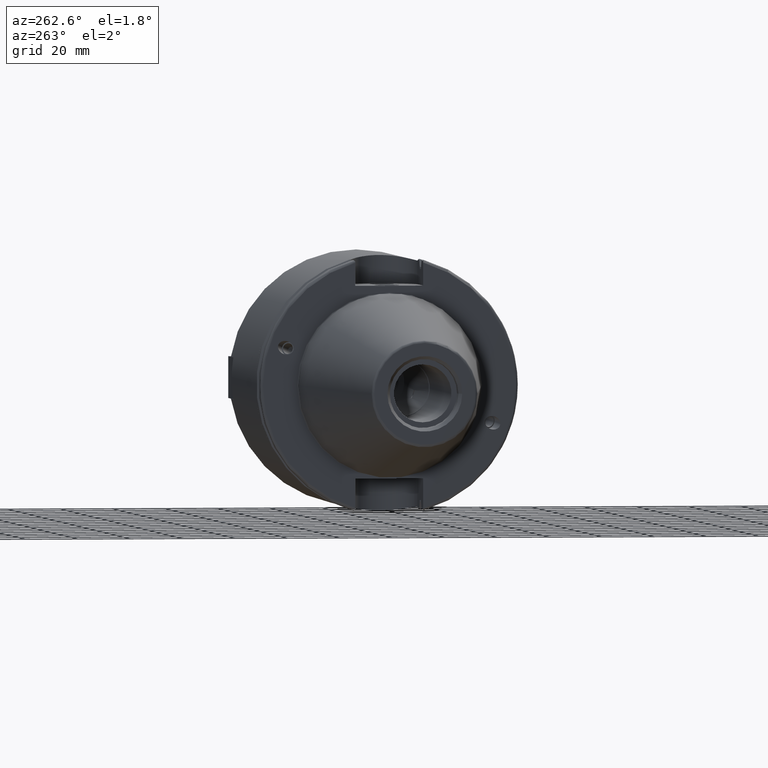
[diagram: clean part render]
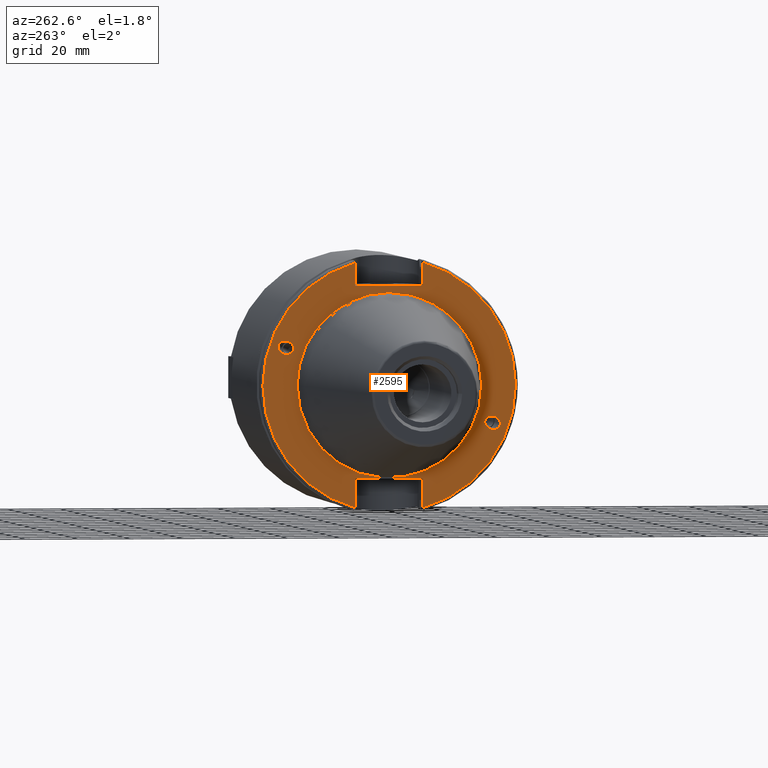
[diagram: same view with one face highlighted and labeled with its STEP entity id]
A machine part, auxiliary view. The second image highlights one B-rep face of the part: STEP entity #2595.
In plain terms, the highlighted planar face has unit normal (-1, 0, 0).
Its self-contained STEP definition (entity closure, byte-faithful):
#55=ELLIPSE('',#2867,3.05193647190364,2.5);
#56=ELLIPSE('',#2906,3.05193647190364,2.5);
#152=FACE_BOUND('',#564,.T.);
#153=FACE_BOUND('',#565,.T.);
#154=FACE_BOUND('',#566,.T.);
#262=CIRCLE('',#2915,35.125);
#263=CIRCLE('',#2916,35.125);
#266=CIRCLE('',#2920,48.2125);
#267=CIRCLE('',#2921,48.2125);
#409=FACE_OUTER_BOUND('',#563,.T.);
#563=EDGE_LOOP('',(#2048,#2049,#2050,#2051,#2052,#2053,#2054,#2055));
#564=EDGE_LOOP('',(#2056));
#565=EDGE_LOOP('',(#2057));
#566=EDGE_LOOP('',(#2058,#2059));
#720=LINE('',#4794,#870);
#721=LINE('',#4798,#871);
#722=LINE('',#4800,#872);
#723=LINE('',#4802,#873);
#724=LINE('',#4806,#874);
#725=LINE('',#4807,#875);
#870=VECTOR('',#3490,10.);
#871=VECTOR('',#3493,10.);
#872=VECTOR('',#3494,10.);
#873=VECTOR('',#3495,10.);
#874=VECTOR('',#3498,10.);
#875=VECTOR('',#3499,10.);
#1109=VERTEX_POINT('',#4497);
#1152=VERTEX_POINT('',#4766);
#1158=VERTEX_POINT('',#4783);
#1159=VERTEX_POINT('',#4785);
#1161=VERTEX_POINT('',#4792);
#1162=VERTEX_POINT('',#4793);
#1163=VERTEX_POINT('',#4795);
#1164=VERTEX_POINT('',#4797);
#1165=VERTEX_POINT('',#4799);
#1166=VERTEX_POINT('',#4801);
#1167=VERTEX_POINT('',#4803);
#1168=VERTEX_POINT('',#4805);
#1424=EDGE_CURVE('',#1109,#1109,#55,.T.);
#1480=EDGE_CURVE('',#1152,#1152,#56,.T.);
#1488=EDGE_CURVE('',#1158,#1159,#262,.T.);
#1489=EDGE_CURVE('',#1159,#1158,#263,.T.);
#1492=EDGE_CURVE('',#1161,#1162,#720,.T.);
#1493=EDGE_CURVE('',#1163,#1162,#266,.T.);
#1494=EDGE_CURVE('',#1163,#1164,#721,.T.);
#1495=EDGE_CURVE('',#1164,#1165,#722,.T.);
#1496=EDGE_CURVE('',#1165,#1166,#723,.T.);
#1497=EDGE_CURVE('',#1167,#1166,#267,.T.);
#1498=EDGE_CURVE('',#1167,#1168,#724,.T.);
#1499=EDGE_CURVE('',#1168,#1161,#725,.T.);
#2048=ORIENTED_EDGE('',*,*,#1492,.T.);
#2049=ORIENTED_EDGE('',*,*,#1493,.F.);
#2050=ORIENTED_EDGE('',*,*,#1494,.T.);
#2051=ORIENTED_EDGE('',*,*,#1495,.T.);
#2052=ORIENTED_EDGE('',*,*,#1496,.T.);
#2053=ORIENTED_EDGE('',*,*,#1497,.F.);
#2054=ORIENTED_EDGE('',*,*,#1498,.T.);
#2055=ORIENTED_EDGE('',*,*,#1499,.T.);
#2056=ORIENTED_EDGE('',*,*,#1424,.T.);
#2057=ORIENTED_EDGE('',*,*,#1480,.T.);
#2058=ORIENTED_EDGE('',*,*,#1489,.F.);
#2059=ORIENTED_EDGE('',*,*,#1488,.F.);
#2490=PLANE('',#2919);
#2595=ADVANCED_FACE('',(#409,#152,#153,#154),#2490,.T.);
#2867=AXIS2_PLACEMENT_3D('',#4499,#3366,#3367);
#2906=AXIS2_PLACEMENT_3D('',#4768,#3460,#3461);
#2915=AXIS2_PLACEMENT_3D('',#4786,#3480,#3481);
#2916=AXIS2_PLACEMENT_3D('',#4787,#3482,#3483);
#2919=AXIS2_PLACEMENT_3D('',#4791,#3488,#3489);
#2920=AXIS2_PLACEMENT_3D('',#4796,#3491,#3492);
#2921=AXIS2_PLACEMENT_3D('',#4804,#3496,#3497);
#3366=DIRECTION('center_axis',(1.,0.,0.));
#3367=DIRECTION('ref_axis',(0.,-0.939692620785908,-0.342020143325669));
#3460=DIRECTION('center_axis',(1.,0.,0.));
#3461=DIRECTION('ref_axis',(0.,0.939692620785908,0.342020143325669));
#3480=DIRECTION('center_axis',(-1.,0.,0.));
#3481=DIRECTION('ref_axis',(0.,-1.,1.83697019872103E-16));
#3482=DIRECTION('center_axis',(-1.,0.,0.));
#3483=DIRECTION('ref_axis',(0.,-1.,1.83697019872103E-16));
#3488=DIRECTION('center_axis',(-1.,0.,0.));
#3489=DIRECTION('ref_axis',(0.,0.,1.));
#3490=DIRECTION('',(0.,0.,-1.));
#3491=DIRECTION('center_axis',(1.,0.,0.));
#3492=DIRECTION('ref_axis',(0.,-1.,1.60812264967664E-16));
#3493=DIRECTION('',(0.,0.,-1.));
#3494=DIRECTION('',(0.,1.,0.));
#3495=DIRECTION('',(0.,0.,1.));
#3496=DIRECTION('center_axis',(1.,0.,0.));
#3497=DIRECTION('ref_axis',(0.,1.,-6.12323399573677E-17));
#3498=DIRECTION('',(0.,0.,1.));
#3499=DIRECTION('',(0.,-1.,0.));
#4497=CARTESIAN_POINT('',(3.175,-36.5992078912529,-13.3210222701368));
#4499=CARTESIAN_POINT('Origin',(3.175,-39.4670900730082,-14.3648460196781));
#4766=CARTESIAN_POINT('',(3.175,36.5992078912529,13.3210222701368));
#4768=CARTESIAN_POINT('Origin',(3.175,39.4670900730082,14.3648460196781));
#4783=CARTESIAN_POINT('',(3.175,-4.30157188200508E-15,35.125));
#4785=CARTESIAN_POINT('',(3.175,35.125,-1.07539297050127E-14));
#4786=CARTESIAN_POINT('Origin',(3.175,0.,0.));
#4787=CARTESIAN_POINT('Origin',(3.175,0.,0.));
#4791=CARTESIAN_POINT('Origin',(3.175,49.2125,0.));
#4792=CARTESIAN_POINT('',(3.175,-12.95,-35.306));
#4793=CARTESIAN_POINT('',(3.175,-12.95,-46.4407434937254));
#4794=CARTESIAN_POINT('',(3.175,-12.95,-17.653));
#4795=CARTESIAN_POINT('',(3.175,-12.95,46.4407434937254));
#4796=CARTESIAN_POINT('Origin',(3.175,0.,0.));
#4797=CARTESIAN_POINT('',(3.175,-12.95,37.719));
#4798=CARTESIAN_POINT('',(3.175,-12.95,18.8595));
#4799=CARTESIAN_POINT('',(3.175,12.95,37.719));
#4800=CARTESIAN_POINT('',(3.175,24.60625,37.719));
#4801=CARTESIAN_POINT('',(3.175,12.95,46.4407434937254));
#4802=CARTESIAN_POINT('',(3.175,12.95,18.8595));
#4803=CARTESIAN_POINT('',(3.175,12.95,-46.4407434937254));
#4804=CARTESIAN_POINT('Origin',(3.175,0.,0.));
#4805=CARTESIAN_POINT('',(3.175,12.95,-35.306));
#4806=CARTESIAN_POINT('',(3.175,12.95,-17.653));
#4807=CARTESIAN_POINT('',(3.175,24.60625,-35.306));